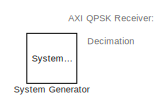
[diagram: root canvas - part 1/4, top center region]
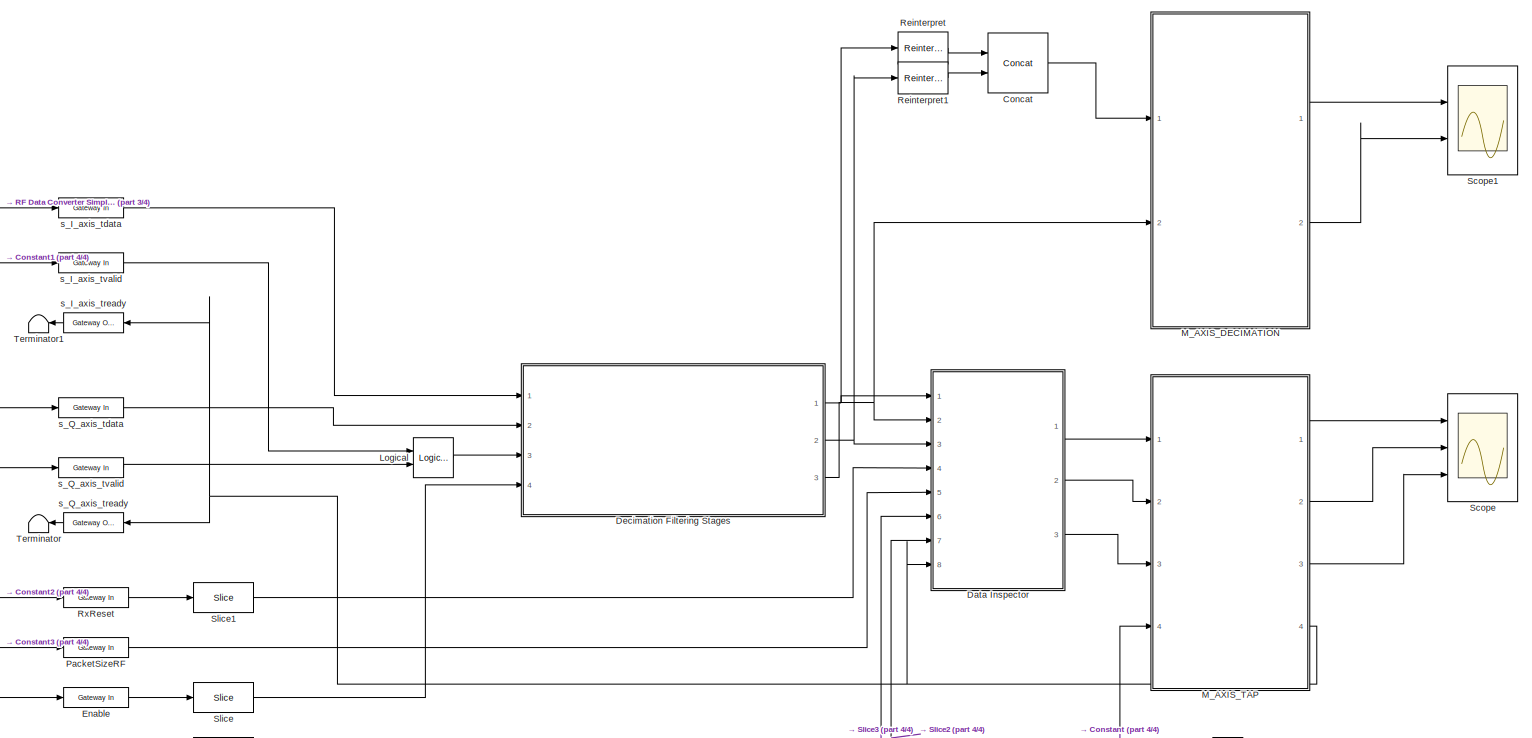
[diagram: root canvas - part 2/4, right side, full height]
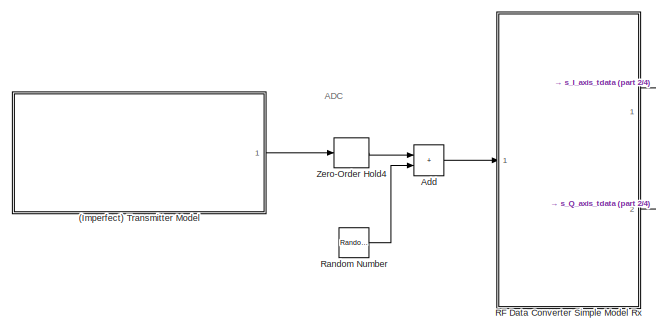
[diagram: root canvas - part 3/4, middle left region]
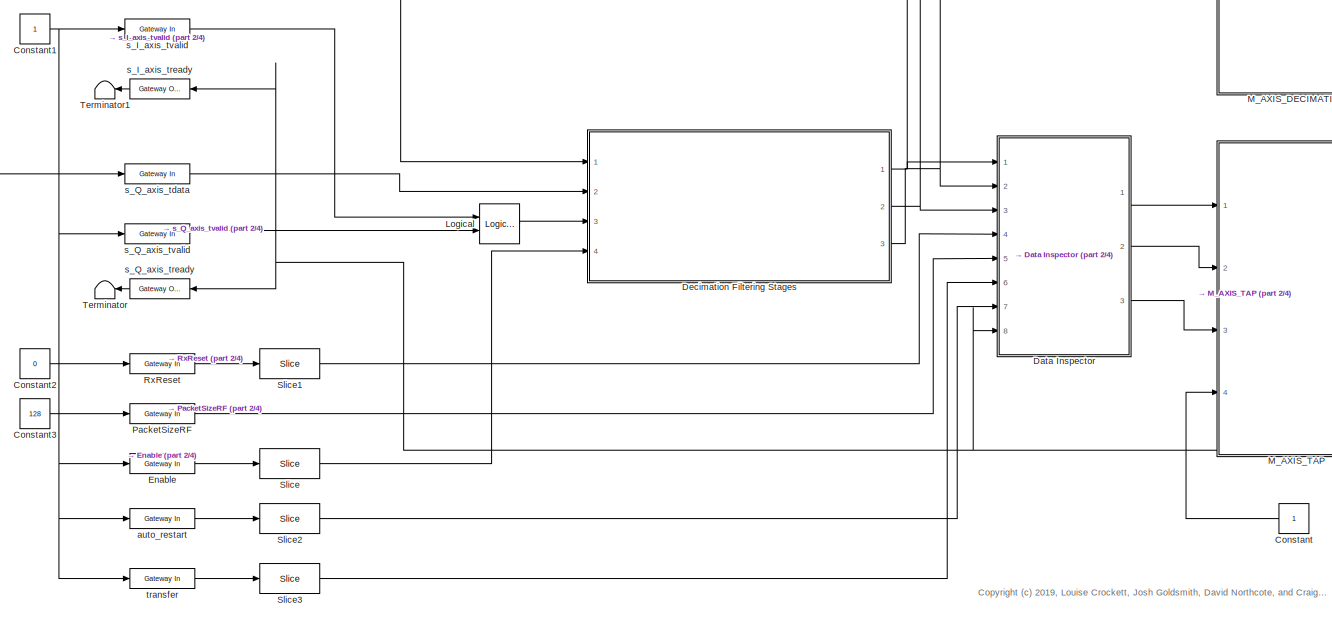
[diagram: root canvas - part 4/4, bottom center region]
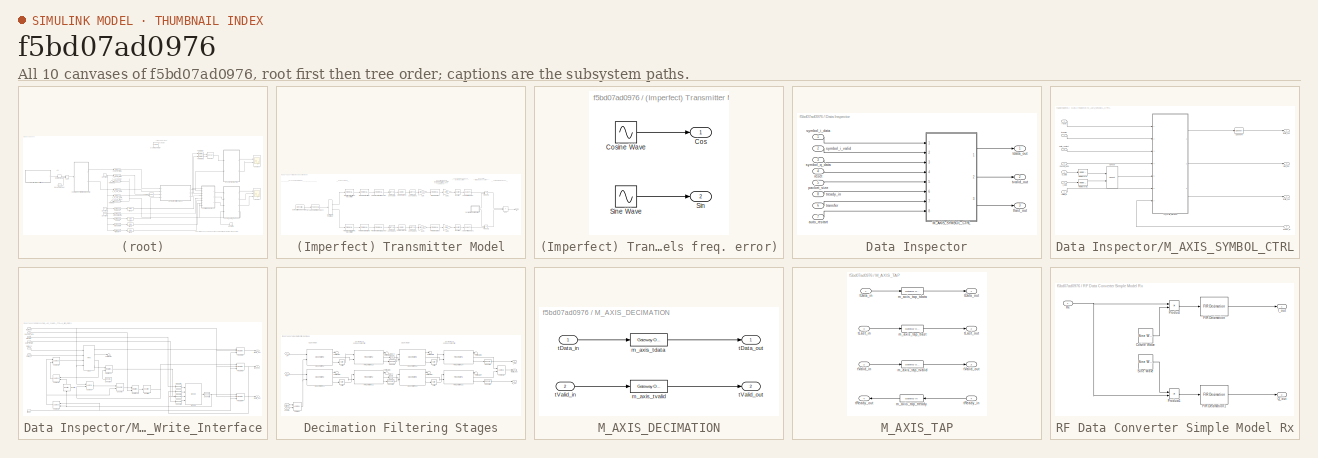
[diagram: thumbnail index - all 10 canvases of the model, root first then tree order]
MODEL slx_f5bd07ad0976
KIND model
CONFIG AbsTol = auto
CONFIG EnableMultiTasking = off
CONFIG FixedStep = auto
CONFIG InitFcn = fs_in=25.6e6;
CONFIG MaxStep = auto
CONFIG MinStep = auto
CONFIG PreLoadFcn = design_filters_rx;      % run script to generate filter designs.\n\nRb = 1000;   % 1kbit / s\n\nRsym = Rb/2;   % 2 bits per symbol\n\nRsymbol = Rb/2;\n\nOSR = 32;\n\nf_error = 120;\n\nfc = 100e3;\n\nfs_in=25.6e6;
CONFIG RelTol = 1e-3
CONFIG SampleTimeConstraint = Unconstrained
CONFIG Solver = VariableStepAuto
CONFIG SolverName = VariableStepAuto
CONFIG StartTime = 0.0
CONFIG StopTime = 10.0
BLOCK [Reference]  System Generator  REF=xbsIndex_r4/ System Generator
  AttributesFormatString = System\nGenerator
  Ports = []
  SourceBlock = xbsIndex_r4/ System Generator
  SourceType = Xilinx System Generator Block
  Tag = genX
  UserDataPersistent = on
BLOCK [SubSystem] (Imperfect) Transmitter Model
  Ports = [0, 1]
  RequestExecContextInheritance = off
BLOCK [Reference] (Imperfect) Transmitter Model/Analog Filter Design  REF=dsparch4/Analog
Filter Design
  Ports = [1, 1]
  SourceBlock = dsparch4/Analog\nFilter Design
  SourceProductBaseCode = DS
  SourceType = Analog Filter Design
BLOCK [Reference] (Imperfect) Transmitter Model/Analog Filter Design1  REF=dsparch4/Analog
Filter Design
  Ports = [1, 1]
  SourceBlock = dsparch4/Analog\nFilter Design
  SourceProductBaseCode = DS
  SourceType = Analog Filter Design
BLOCK [Reference] (Imperfect) Transmitter Model/Bernoulli Binary Generator  REF=commrandsrc2/Bernoulli Binary
Generator
  Ports = [0, 1]
  SourceBlock = commrandsrc2/Bernoulli Binary\nGenerator
  SourceProductBaseCode = CM
  SourceType = Bernoulli Binary Generator
BLOCK [Reference] (Imperfect) Transmitter Model/CIC Interpolation (I)  REF=dspmlti4/CIC
Interpolation
  Ports = [1, 1]
  SourceBlock = dspmlti4/CIC\nInterpolation
  SourceProductBaseCode = DS
  SourceType = CIC Interpolation
  UserDataPersistent = on
BLOCK [Reference] (Imperfect) Transmitter Model/CIC Interpolation (Q)  REF=dspmlti4/CIC
Interpolation
  Ports = [1, 1]
  SourceBlock = dspmlti4/CIC\nInterpolation
  SourceProductBaseCode = DS
  SourceType = CIC Interpolation
  UserDataPersistent = on
BLOCK [ComplexToRealImag] (Imperfect) Transmitter Model/Complex to Real-Imag
  Ports = [1, 2]
BLOCK [DataTypeConversion] (Imperfect) Transmitter Model/Data Type Conversion
  OutDataTypeStr = fixdt(1,16,14)
  RndMeth = Floor
  SaturateOnIntegerOverflow = off
BLOCK [DataTypeConversion] (Imperfect) Transmitter Model/Data Type Conversion1
  OutDataTypeStr = fixdt(1,16,14)
  RndMeth = Floor
  SaturateOnIntegerOverflow = off
BLOCK [DataTypeConversion] (Imperfect) Transmitter Model/Data Type Conversion2
  OutDataTypeStr = double
  RndMeth = Floor
  SaturateOnIntegerOverflow = off
BLOCK [DataTypeConversion] (Imperfect) Transmitter Model/Data Type Conversion3
  OutDataTypeStr = double
  RndMeth = Floor
  SaturateOnIntegerOverflow = off
BLOCK [Reference] (Imperfect) Transmitter Model/FIR Interpolation  REF=dspmlti4/FIR
Interpolation
  Ports = [1, 1]
  SourceBlock = dspmlti4/FIR\nInterpolation
  SourceProductBaseCode = DS
  SourceType = FIR Interpolation
  UserDataPersistent = on
BLOCK [Reference] (Imperfect) Transmitter Model/FIR Interpolation (I) (CIC Comp)  REF=dspmlti4/FIR
Interpolation
  Ports = [1, 1]
  SourceBlock = dspmlti4/FIR\nInterpolation
  SourceProductBaseCode = DS
  SourceType = FIR Interpolation
  UserDataPersistent = on
BLOCK [Reference] (Imperfect) Transmitter Model/FIR Interpolation (I) (HB)  REF=dspmlti4/FIR
Interpolation
  Ports = [1, 1]
  SourceBlock = dspmlti4/FIR\nInterpolation
  SourceProductBaseCode = DS
  SourceType = FIR Interpolation
  UserDataPersistent = on
BLOCK [Reference] (Imperfect) Transmitter Model/FIR Interpolation (I) (RRC Transmit Filter)  REF=dspmlti4/FIR
Interpolation
  Ports = [1, 1]
  SourceBlock = dspmlti4/FIR\nInterpolation
  SourceProductBaseCode = DS
  SourceType = FIR Interpolation
  UserDataPersistent = on
BLOCK [Reference] (Imperfect) Transmitter Model/FIR Interpolation (Q) (CIC Comp)  REF=dspmlti4/FIR
Interpolation
  Ports = [1, 1]
  SourceBlock = dspmlti4/FIR\nInterpolation
  SourceProductBaseCode = DS
  SourceType = FIR Interpolation
  UserDataPersistent = on
BLOCK [Reference] (Imperfect) Transmitter Model/FIR Interpolation (Q) (HB)  REF=dspmlti4/FIR
Interpolation
  Ports = [1, 1]
  SourceBlock = dspmlti4/FIR\nInterpolation
  SourceProductBaseCode = DS
  SourceType = FIR Interpolation
  UserDataPersistent = on
BLOCK [Reference] (Imperfect) Transmitter Model/FIR Interpolation (Q) (RRC Transmit Filter)  REF=dspmlti4/FIR
Interpolation
  Ports = [1, 1]
  SourceBlock = dspmlti4/FIR\nInterpolation
  SourceProductBaseCode = DS
  SourceType = FIR Interpolation
  UserDataPersistent = on
BLOCK [Reference] (Imperfect) Transmitter Model/FIR Interpolation1  REF=dspmlti4/FIR
Interpolation
  Ports = [1, 1]
  SourceBlock = dspmlti4/FIR\nInterpolation
  SourceProductBaseCode = DS
  SourceType = FIR Interpolation
  UserDataPersistent = on
BLOCK [Gain] (Imperfect) Transmitter Model/Gain
  Gain = 1/(R_CIC^5)
BLOCK [Gain] (Imperfect) Transmitter Model/Gain1
  Gain = 1/(R_CIC^5)
BLOCK [Gain] (Imperfect) Transmitter Model/Gain2
  Gain = 2*2*8
BLOCK [Gain] (Imperfect) Transmitter Model/Gain3
  Gain = 2*2*8
BLOCK [Outport] (Imperfect) Transmitter Model/IF
  VectorParamsAs1DForOutWhenUnconnected = off
BLOCK [SubSystem] (Imperfect) Transmitter Model/Oscillator (models freq. error)
  Ports = [0, 2]
  RequestExecContextInheritance = off
BLOCK [Outport] (Imperfect) Transmitter Model/Oscillator (models freq. error)/Cos
  VectorParamsAs1DForOutWhenUnconnected = off
BLOCK [Sin] (Imperfect) Transmitter Model/Oscillator (models freq. error)/Cosine Wave
  Frequency = 2*pi*(fc-F_Offset)
  Phase = pi/2
  Ports = [0, 1]
  SampleTime = 0
BLOCK [Outport] (Imperfect) Transmitter Model/Oscillator (models freq. error)/Sin
  Port = 2
  VectorParamsAs1DForOutWhenUnconnected = off
BLOCK [Sin] (Imperfect) Transmitter Model/Oscillator (models freq. error)/Sine Wave
  Frequency = 2*pi*(fc-F_Offset)
  Ports = [0, 1]
  SampleTime = 0
BLOCK [Product] (Imperfect) Transmitter Model/Product1
  Ports = [2, 1]
BLOCK [Product] (Imperfect) Transmitter Model/Product2
  Ports = [2, 1]
BLOCK [Reference] (Imperfect) Transmitter Model/QPSK Modulator Baseband  REF=commdigbbndpm3/QPSK
Modulator
Baseband
  Ports = [1, 1]
  SourceBlock = commdigbbndpm3/QPSK\nModulator\nBaseband
  SourceProductBaseCode = CM
  SourceType = QPSK Modulator Baseband
BLOCK [Unbuffer] (Imperfect) Transmitter Model/Unbuffer
  Ports = [1, 1]
BLOCK [Unbuffer] (Imperfect) Transmitter Model/Unbuffer1
  Ports = [1, 1]
BLOCK [Sum] (Imperfect) Transmitter Model/add
  IconShape = rectangular
  Ports = [2, 1]
BLOCK [Sum] Add
  IconShape = rectangular
  Ports = [2, 1]
BLOCK [Reference] Concat  REF=xbsIndex_r4/Concat
  Ports = [2, 1]
  SourceBlock = xbsIndex_r4/Concat
  SourceType = Xilinx Bus Concatenator Block
BLOCK [Constant] Constant
  OutDataTypeStr = boolean
  SampleTime = 1/fs_in
BLOCK [Constant] Constant1
  OutDataTypeStr = boolean
  SampleTime = -1
BLOCK [Constant] Constant2
  OutDataTypeStr = boolean
  SampleTime = -1
  Value = 0
BLOCK [Constant] Constant3
  OutDataTypeStr = uint32
  SampleTime = -1
  Value = 128
BLOCK [SubSystem] Data Inspector
  Ports = [8, 3]
  RequestExecContextInheritance = off
BLOCK [SubSystem] Data Inspector/M_AXIS_SYMBOL_CTRL
  Ports = [8, 3]
  RequestExecContextInheritance = off
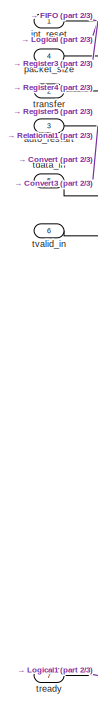
[diagram: Data Inspector/M_AXIS_SYMBOL_CTRL/AXI_Write_Interface - part 1/3, left side, full height]
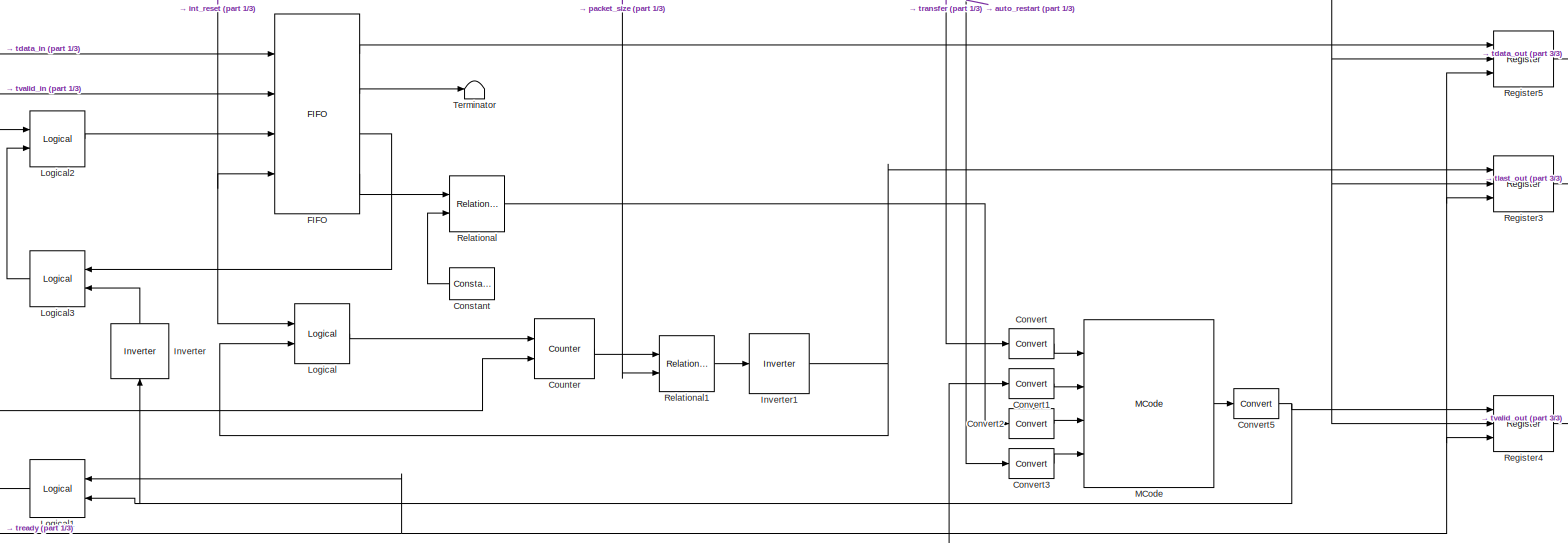
[diagram: Data Inspector/M_AXIS_SYMBOL_CTRL/AXI_Write_Interface - part 2/3, most of the canvas]
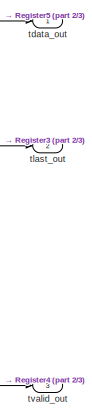
[diagram: Data Inspector/M_AXIS_SYMBOL_CTRL/AXI_Write_Interface - part 3/3, middle right region]
BLOCK [SubSystem] Data Inspector/M_AXIS_SYMBOL_CTRL/AXI_Write_Interface
  Ports = [7, 3]
  RequestExecContextInheritance = off
BLOCK [Reference] Data Inspector/M_AXIS_SYMBOL_CTRL/AXI_Write_Interface/Constant  REF=xbsIndex_r4/Constant
  Ports = [0, 1]
  SourceBlock = xbsIndex_r4/Constant
  SourceType = Xilinx Constant Block Block
BLOCK [Reference] Data Inspector/M_AXIS_SYMBOL_CTRL/AXI_Write_Interface/Convert  REF=xbsIndex_r4/Convert
  Ports = [1, 1]
  SourceBlock = xbsIndex_r4/Convert
  SourceType = Xilinx Type Converter Block
BLOCK [Reference] Data Inspector/M_AXIS_SYMBOL_CTRL/AXI_Write_Interface/Convert1  REF=xbsIndex_r4/Convert
  Ports = [1, 1]
  SourceBlock = xbsIndex_r4/Convert
  SourceType = Xilinx Type Converter Block
BLOCK [Reference] Data Inspector/M_AXIS_SYMBOL_CTRL/AXI_Write_Interface/Convert2  REF=xbsIndex_r4/Convert
  Ports = [1, 1]
  SourceBlock = xbsIndex_r4/Convert
  SourceType = Xilinx Type Converter Block
BLOCK [Reference] Data Inspector/M_AXIS_SYMBOL_CTRL/AXI_Write_Interface/Convert3  REF=xbsIndex_r4/Convert
  Ports = [1, 1]
  SourceBlock = xbsIndex_r4/Convert
  SourceType = Xilinx Type Converter Block
BLOCK [Reference] Data Inspector/M_AXIS_SYMBOL_CTRL/AXI_Write_Interface/Convert5  REF=xbsIndex_r4/Convert
  Ports = [1, 1]
  SourceBlock = xbsIndex_r4/Convert
  SourceType = Xilinx Type Converter Block
BLOCK [Reference] Data Inspector/M_AXIS_SYMBOL_CTRL/AXI_Write_Interface/Counter  REF=xbsIndex_r4/Counter
  Ports = [2, 1]
  SourceBlock = xbsIndex_r4/Counter
  SourceType = Xilinx Counter Block
BLOCK [Reference] Data Inspector/M_AXIS_SYMBOL_CTRL/AXI_Write_Interface/FIFO  REF=xbsIndex_r4/FIFO
  Ports = [4, 4]
  SourceBlock = xbsIndex_r4/FIFO
  SourceType = Xilinx FIFO Block Block
BLOCK [Reference] Data Inspector/M_AXIS_SYMBOL_CTRL/AXI_Write_Interface/Inverter  REF=xbsIndex_r4/Inverter
  NameLocation = left
  Ports = [1, 1]
  SourceBlock = xbsIndex_r4/Inverter
  SourceType = Xilinx Inverter Block
BLOCK [Reference] Data Inspector/M_AXIS_SYMBOL_CTRL/AXI_Write_Interface/Inverter1  REF=xbsIndex_r4/Inverter
  Ports = [1, 1]
  SourceBlock = xbsIndex_r4/Inverter
  SourceType = Xilinx Inverter Block
BLOCK [Reference] Data Inspector/M_AXIS_SYMBOL_CTRL/AXI_Write_Interface/Logical  REF=xbsIndex_r4/Logical
  Ports = [2, 1]
  SourceBlock = xbsIndex_r4/Logical
  SourceType = Xilinx Logical Block Block
BLOCK [Reference] Data Inspector/M_AXIS_SYMBOL_CTRL/AXI_Write_Interface/Logical1  REF=xbsIndex_r4/Logical
  NameLocation = top
  Ports = [2, 1]
  SourceBlock = xbsIndex_r4/Logical
  SourceType = Xilinx Logical Block Block
BLOCK [Reference] Data Inspector/M_AXIS_SYMBOL_CTRL/AXI_Write_Interface/Logical2  REF=xbsIndex_r4/Logical
  Ports = [2, 1]
  SourceBlock = xbsIndex_r4/Logical
  SourceType = Xilinx Logical Block Block
BLOCK [Reference] Data Inspector/M_AXIS_SYMBOL_CTRL/AXI_Write_Interface/Logical3  REF=xbsIndex_r4/Logical
  NameLocation = top
  Ports = [2, 1]
  SourceBlock = xbsIndex_r4/Logical
  SourceType = Xilinx Logical Block Block
BLOCK [Reference] Data Inspector/M_AXIS_SYMBOL_CTRL/AXI_Write_Interface/MCode  REF=xbsIndex_r4/MCode
  Ports = [4, 1]
  SourceBlock = xbsIndex_r4/MCode
  SourceType = Xilinx MCode Block Block
BLOCK [Reference] Data Inspector/M_AXIS_SYMBOL_CTRL/AXI_Write_Interface/Register3  REF=xbsIndex_r4/Register
  Ports = [3, 1]
  SourceBlock = xbsIndex_r4/Register
  SourceType = Xilinx Register Block
BLOCK [Reference] Data Inspector/M_AXIS_SYMBOL_CTRL/AXI_Write_Interface/Register4  REF=xbsIndex_r4/Register
  Ports = [3, 1]
  SourceBlock = xbsIndex_r4/Register
  SourceType = Xilinx Register Block
BLOCK [Reference] Data Inspector/M_AXIS_SYMBOL_CTRL/AXI_Write_Interface/Register5  REF=xbsIndex_r4/Register
  Ports = [3, 1]
  SourceBlock = xbsIndex_r4/Register
  SourceType = Xilinx Register Block
BLOCK [Reference] Data Inspector/M_AXIS_SYMBOL_CTRL/AXI_Write_Interface/Relational  REF=xbsIndex_r4/Relational
  Ports = [2, 1]
  SourceBlock = xbsIndex_r4/Relational
  SourceType = Xilinx Arithmetic Relational Operator Block
BLOCK [Reference] Data Inspector/M_AXIS_SYMBOL_CTRL/AXI_Write_Interface/Relational1  REF=xbsIndex_r4/Relational
  Ports = [2, 1]
  SourceBlock = xbsIndex_r4/Relational
  SourceType = Xilinx Arithmetic Relational Operator Block
BLOCK [Terminator] Data Inspector/M_AXIS_SYMBOL_CTRL/AXI_Write_Interface/Terminator
BLOCK [Inport] Data Inspector/M_AXIS_SYMBOL_CTRL/AXI_Write_Interface/auto_restart
  Port = 3
BLOCK [Inport] Data Inspector/M_AXIS_SYMBOL_CTRL/AXI_Write_Interface/int_reset
BLOCK [Inport] Data Inspector/M_AXIS_SYMBOL_CTRL/AXI_Write_Interface/packet_size
  Port = 4
BLOCK [Inport] Data Inspector/M_AXIS_SYMBOL_CTRL/AXI_Write_Interface/tdata_in
  Port = 5
BLOCK [Outport] Data Inspector/M_AXIS_SYMBOL_CTRL/AXI_Write_Interface/tdata_out
  VectorParamsAs1DForOutWhenUnconnected = off
BLOCK [Outport] Data Inspector/M_AXIS_SYMBOL_CTRL/AXI_Write_Interface/tlast_out
  Port = 2
  VectorParamsAs1DForOutWhenUnconnected = off
BLOCK [Inport] Data Inspector/M_AXIS_SYMBOL_CTRL/AXI_Write_Interface/transfer
  Port = 2
BLOCK [Inport] Data Inspector/M_AXIS_SYMBOL_CTRL/AXI_Write_Interface/tready
  Port = 7
BLOCK [Inport] Data Inspector/M_AXIS_SYMBOL_CTRL/AXI_Write_Interface/tvalid_in
  Port = 6
BLOCK [Outport] Data Inspector/M_AXIS_SYMBOL_CTRL/AXI_Write_Interface/tvalid_out
  Port = 3
  VectorParamsAs1DForOutWhenUnconnected = off
BLOCK [Reference] Data Inspector/M_AXIS_SYMBOL_CTRL/Concat  REF=xbsIndex_r4/Concat
  Ports = [2, 1]
  SourceBlock = xbsIndex_r4/Concat
  SourceType = Xilinx Bus Concatenator Block
BLOCK [Reference] Data Inspector/M_AXIS_SYMBOL_CTRL/Convert4  REF=xbsIndex_r4/Convert
  Ports = [1, 1]
  SourceBlock = xbsIndex_r4/Convert
  SourceType = Xilinx Type Converter Block
BLOCK [Reference] Data Inspector/M_AXIS_SYMBOL_CTRL/Reinterpret  REF=xbsIndex_r4/Reinterpret
  Ports = [1, 1]
  SourceBlock = xbsIndex_r4/Reinterpret
  SourceType = Xilinx Type Reinterpreter Block
BLOCK [Reference] Data Inspector/M_AXIS_SYMBOL_CTRL/Reinterpret1  REF=xbsIndex_r4/Reinterpret
  Ports = [1, 1]
  SourceBlock = xbsIndex_r4/Reinterpret
  SourceType = Xilinx Type Reinterpreter Block
BLOCK [Inport] Data Inspector/M_AXIS_SYMBOL_CTRL/auto_restart
  Port = 8
BLOCK [Inport] Data Inspector/M_AXIS_SYMBOL_CTRL/i_data
BLOCK [Inport] Data Inspector/M_AXIS_SYMBOL_CTRL/packet_size
  Port = 5
BLOCK [Inport] Data Inspector/M_AXIS_SYMBOL_CTRL/q_data
  Port = 3
BLOCK [Inport] Data Inspector/M_AXIS_SYMBOL_CTRL/reset
  Port = 4
BLOCK [Outport] Data Inspector/M_AXIS_SYMBOL_CTRL/tdata_out
  VectorParamsAs1DForOutWhenUnconnected = off
BLOCK [Outport] Data Inspector/M_AXIS_SYMBOL_CTRL/tlast_out
  Port = 3
  VectorParamsAs1DForOutWhenUnconnected = off
BLOCK [Inport] Data Inspector/M_AXIS_SYMBOL_CTRL/transfer
  Port = 7
BLOCK [Inport] Data Inspector/M_AXIS_SYMBOL_CTRL/tready_in
  Port = 6
BLOCK [Inport] Data Inspector/M_AXIS_SYMBOL_CTRL/tvalid_in
  Port = 2
BLOCK [Outport] Data Inspector/M_AXIS_SYMBOL_CTRL/tvalid_out
  Port = 2
  VectorParamsAs1DForOutWhenUnconnected = off
BLOCK [Inport] Data Inspector/auto_restart
  Port = 7
BLOCK [Inport] Data Inspector/packet_size
  Port = 5
BLOCK [Inport] Data Inspector/reset
  Port = 4
BLOCK [Inport] Data Inspector/symbol_i_data
BLOCK [Inport] Data Inspector/symbol_i_valid
  Port = 2
BLOCK [Inport] Data Inspector/symbol_q_data
  Port = 3
BLOCK [Outport] Data Inspector/tdata_out
  VectorParamsAs1DForOutWhenUnconnected = off
BLOCK [Outport] Data Inspector/tlast_out
  Port = 3
  VectorParamsAs1DForOutWhenUnconnected = off
BLOCK [Inport] Data Inspector/transfer
  Port = 6
BLOCK [Inport] Data Inspector/tready_in
  Port = 8
BLOCK [Outport] Data Inspector/tvalid_out
  Port = 2
  VectorParamsAs1DForOutWhenUnconnected = off
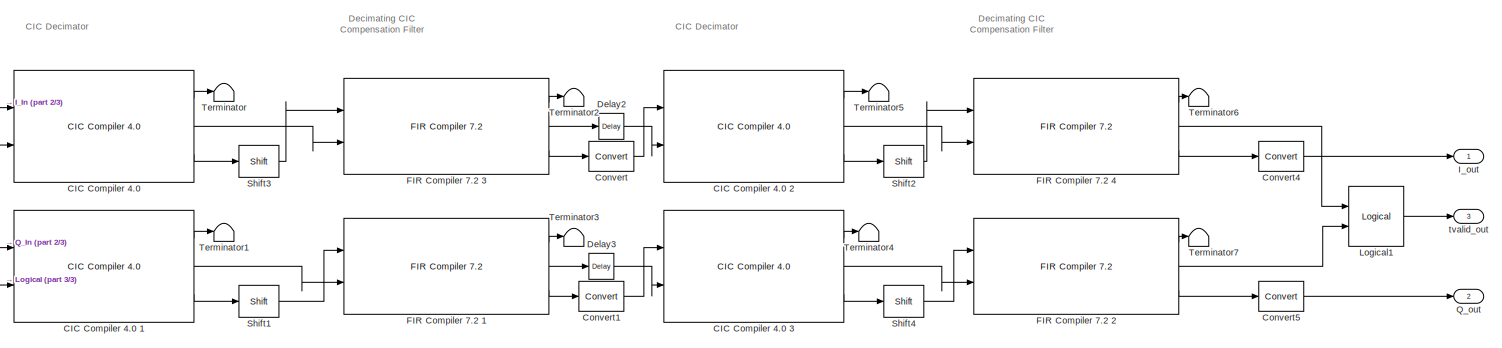
[diagram: Decimation Filtering Stages - part 1/3, full width, middle band]
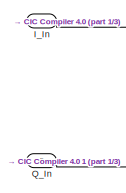
[diagram: Decimation Filtering Stages - part 2/3, middle left region]
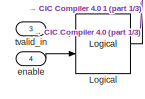
[diagram: Decimation Filtering Stages - part 3/3, bottom left region]
BLOCK [SubSystem] Decimation Filtering Stages
  Ports = [4, 3]
  RequestExecContextInheritance = off
BLOCK [Reference] Decimation Filtering Stages/CIC Compiler 4.0   REF=xbsIndex_r4/CIC Compiler 4.0 
  Ports = [2, 3]
  SourceBlock = xbsIndex_r4/CIC Compiler 4.0
  SourceType = Xilinx CIC Compiler 4.0 Block
BLOCK [Reference] Decimation Filtering Stages/CIC Compiler 4.0 1  REF=xbsIndex_r4/CIC Compiler 4.0 
  Ports = [2, 3]
  SourceBlock = xbsIndex_r4/CIC Compiler 4.0
  SourceType = Xilinx CIC Compiler 4.0 Block
BLOCK [Reference] Decimation Filtering Stages/CIC Compiler 4.0 2  REF=xbsIndex_r4/CIC Compiler 4.0 
  Ports = [2, 3]
  SourceBlock = xbsIndex_r4/CIC Compiler 4.0
  SourceType = Xilinx CIC Compiler 4.0 Block
BLOCK [Reference] Decimation Filtering Stages/CIC Compiler 4.0 3  REF=xbsIndex_r4/CIC Compiler 4.0 
  Ports = [2, 3]
  SourceBlock = xbsIndex_r4/CIC Compiler 4.0
  SourceType = Xilinx CIC Compiler 4.0 Block
BLOCK [Reference] Decimation Filtering Stages/Convert  REF=xbsIndex_r4/Convert
  Ports = [1, 1]
  SourceBlock = xbsIndex_r4/Convert
  SourceType = Xilinx Type Converter Block
BLOCK [Reference] Decimation Filtering Stages/Convert1  REF=xbsIndex_r4/Convert
  Ports = [1, 1]
  SourceBlock = xbsIndex_r4/Convert
  SourceType = Xilinx Type Converter Block
BLOCK [Reference] Decimation Filtering Stages/Convert4  REF=xbsIndex_r4/Convert
  Ports = [1, 1]
  SourceBlock = xbsIndex_r4/Convert
  SourceType = Xilinx Type Converter Block
BLOCK [Reference] Decimation Filtering Stages/Convert5  REF=xbsIndex_r4/Convert
  Ports = [1, 1]
  SourceBlock = xbsIndex_r4/Convert
  SourceType = Xilinx Type Converter Block
BLOCK [Reference] Decimation Filtering Stages/Delay2  REF=xbsIndex_r4/Delay
  Ports = [1, 1]
  SourceBlock = xbsIndex_r4/Delay
  SourceType = Xilinx Delay Block
BLOCK [Reference] Decimation Filtering Stages/Delay3  REF=xbsIndex_r4/Delay
  Ports = [1, 1]
  SourceBlock = xbsIndex_r4/Delay
  SourceType = Xilinx Delay Block
BLOCK [Reference] Decimation Filtering Stages/FIR Compiler 7.2 1  REF=xbsIndex_r4/FIR Compiler 7.2 
  Ports = [2, 3]
  SourceBlock = xbsIndex_r4/FIR Compiler 7.2
  SourceType = Xilinx FIR Compiler 7.2 Block
BLOCK [Reference] Decimation Filtering Stages/FIR Compiler 7.2 2  REF=xbsIndex_r4/FIR Compiler 7.2 
  Ports = [2, 3]
  SourceBlock = xbsIndex_r4/FIR Compiler 7.2
  SourceType = Xilinx FIR Compiler 7.2 Block
BLOCK [Reference] Decimation Filtering Stages/FIR Compiler 7.2 3  REF=xbsIndex_r4/FIR Compiler 7.2 
  Ports = [2, 3]
  SourceBlock = xbsIndex_r4/FIR Compiler 7.2
  SourceType = Xilinx FIR Compiler 7.2 Block
BLOCK [Reference] Decimation Filtering Stages/FIR Compiler 7.2 4  REF=xbsIndex_r4/FIR Compiler 7.2 
  Ports = [2, 3]
  SourceBlock = xbsIndex_r4/FIR Compiler 7.2
  SourceType = Xilinx FIR Compiler 7.2 Block
BLOCK [Inport] Decimation Filtering Stages/I_In
BLOCK [Outport] Decimation Filtering Stages/I_out
  VectorParamsAs1DForOutWhenUnconnected = off
BLOCK [Reference] Decimation Filtering Stages/Logical  REF=xbsIndex_r4/Logical
  Ports = [2, 1]
  SourceBlock = xbsIndex_r4/Logical
  SourceType = Xilinx Logical Block Block
BLOCK [Reference] Decimation Filtering Stages/Logical1  REF=xbsIndex_r4/Logical
  Ports = [2, 1]
  SourceBlock = xbsIndex_r4/Logical
  SourceType = Xilinx Logical Block Block
BLOCK [Inport] Decimation Filtering Stages/Q_In
  Port = 2
BLOCK [Outport] Decimation Filtering Stages/Q_out
  Port = 2
  VectorParamsAs1DForOutWhenUnconnected = off
BLOCK [Reference] Decimation Filtering Stages/Shift1  REF=xbsIndex_r4/Shift
  Ports = [1, 1]
  SourceBlock = xbsIndex_r4/Shift
  SourceType = Xilinx Binary Shift Operator Block
BLOCK [Reference] Decimation Filtering Stages/Shift2  REF=xbsIndex_r4/Shift
  Ports = [1, 1]
  SourceBlock = xbsIndex_r4/Shift
  SourceType = Xilinx Binary Shift Operator Block
BLOCK [Reference] Decimation Filtering Stages/Shift3  REF=xbsIndex_r4/Shift
  Ports = [1, 1]
  SourceBlock = xbsIndex_r4/Shift
  SourceType = Xilinx Binary Shift Operator Block
BLOCK [Reference] Decimation Filtering Stages/Shift4  REF=xbsIndex_r4/Shift
  Ports = [1, 1]
  SourceBlock = xbsIndex_r4/Shift
  SourceType = Xilinx Binary Shift Operator Block
BLOCK [Terminator] Decimation Filtering Stages/Terminator
BLOCK [Terminator] Decimation Filtering Stages/Terminator1
BLOCK [Terminator] Decimation Filtering Stages/Terminator2
BLOCK [Terminator] Decimation Filtering Stages/Terminator3
BLOCK [Terminator] Decimation Filtering Stages/Terminator4
BLOCK [Terminator] Decimation Filtering Stages/Terminator5
BLOCK [Terminator] Decimation Filtering Stages/Terminator6
BLOCK [Terminator] Decimation Filtering Stages/Terminator7
BLOCK [Inport] Decimation Filtering Stages/enable
  Port = 4
BLOCK [Inport] Decimation Filtering Stages/tvalid_in
  Port = 3
BLOCK [Outport] Decimation Filtering Stages/tvalid_out
  Port = 3
  VectorParamsAs1DForOutWhenUnconnected = off
BLOCK [Reference] Enable  REF=xbsIndex_r4/Gateway In
  Ports = [1, 1]
  SourceBlock = xbsIndex_r4/Gateway In
  SourceType = Xilinx Gateway In Block
BLOCK [Reference] Logical  REF=xbsIndex_r4/Logical
  Ports = [2, 1]
  SourceBlock = xbsIndex_r4/Logical
  SourceType = Xilinx Logical Block Block
BLOCK [SubSystem] M_AXIS_DECIMATION
  Ports = [2, 2]
  RequestExecContextInheritance = off
BLOCK [Reference] M_AXIS_DECIMATION/m_axis_tdata  REF=xbsIndex_r4/Gateway Out
  Ports = [1, 1]
  SourceBlock = xbsIndex_r4/Gateway Out
  SourceType = Xilinx Gateway Out Block
BLOCK [Reference] M_AXIS_DECIMATION/m_axis_tvalid  REF=xbsIndex_r4/Gateway Out
  Ports = [1, 1]
  SourceBlock = xbsIndex_r4/Gateway Out
  SourceType = Xilinx Gateway Out Block
BLOCK [Inport] M_AXIS_DECIMATION/tData_in
BLOCK [Outport] M_AXIS_DECIMATION/tData_out
  VectorParamsAs1DForOutWhenUnconnected = off
BLOCK [Inport] M_AXIS_DECIMATION/tValid_in
  Port = 2
BLOCK [Outport] M_AXIS_DECIMATION/tValid_out
  Port = 2
  VectorParamsAs1DForOutWhenUnconnected = off
BLOCK [SubSystem] M_AXIS_TAP
  Ports = [4, 4]
  RequestExecContextInheritance = off
BLOCK [Reference] M_AXIS_TAP/m_axis_tap_tdata  REF=xbsIndex_r4/Gateway Out
  Ports = [1, 1]
  SourceBlock = xbsIndex_r4/Gateway Out
  SourceType = Xilinx Gateway Out Block
BLOCK [Reference] M_AXIS_TAP/m_axis_tap_tlast  REF=xbsIndex_r4/Gateway Out
  Ports = [1, 1]
  SourceBlock = xbsIndex_r4/Gateway Out
  SourceType = Xilinx Gateway Out Block
BLOCK [Reference] M_AXIS_TAP/m_axis_tap_tready  REF=xbsIndex_r4/Gateway In
  Ports = [1, 1]
  SourceBlock = xbsIndex_r4/Gateway In
  SourceType = Xilinx Gateway In Block
BLOCK [Reference] M_AXIS_TAP/m_axis_tap_tvalid  REF=xbsIndex_r4/Gateway Out
  Ports = [1, 1]
  SourceBlock = xbsIndex_r4/Gateway Out
  SourceType = Xilinx Gateway Out Block
BLOCK [Inport] M_AXIS_TAP/tData_in
BLOCK [Outport] M_AXIS_TAP/tData_out
  VectorParamsAs1DForOutWhenUnconnected = off
BLOCK [Inport] M_AXIS_TAP/tLast_in
  Port = 3
BLOCK [Outport] M_AXIS_TAP/tLast_out
  Port = 2
  VectorParamsAs1DForOutWhenUnconnected = off
BLOCK [Inport] M_AXIS_TAP/tReady_in
  Port = 4
BLOCK [Outport] M_AXIS_TAP/tReady_out
  Port = 4
  VectorParamsAs1DForOutWhenUnconnected = off
BLOCK [Inport] M_AXIS_TAP/tValid_in
  Port = 2
BLOCK [Outport] M_AXIS_TAP/tValid_out
  Port = 3
  VectorParamsAs1DForOutWhenUnconnected = off
BLOCK [Reference] PacketSizeRF  REF=xbsIndex_r4/Gateway In
  Ports = [1, 1]
  SourceBlock = xbsIndex_r4/Gateway In
  SourceType = Xilinx Gateway In Block
BLOCK [SubSystem] RF Data Converter Simple Model Rx
  Ports = [1, 2]
  RequestExecContextInheritance = off
BLOCK [Reference] RF Data Converter Simple Model Rx/Cosine Wave  REF=dspsrcs4/Sine Wave
  NameLocation = top
  Ports = [0, 1]
  SourceBlock = dspsrcs4/Sine Wave
  SourceProductBaseCode = DS
  SourceType = Sine Wave
BLOCK [Reference] RF Data Converter Simple Model Rx/FIR Decimation  REF=dspmlti4/FIR
Decimation
  Ports = [1, 1]
  SourceBlock = dspmlti4/FIR\nDecimation
  SourceProductBaseCode = DS
  SourceType = FIR Decimation
  UserDataPersistent = on
BLOCK [Reference] RF Data Converter Simple Model Rx/FIR Decimation1  REF=dspmlti4/FIR
Decimation
  Ports = [1, 1]
  SourceBlock = dspmlti4/FIR\nDecimation
  SourceProductBaseCode = DS
  SourceType = FIR Decimation
  UserDataPersistent = on
BLOCK [Outport] RF Data Converter Simple Model Rx/I_out
  VectorParamsAs1DForOutWhenUnconnected = off
BLOCK [Product] RF Data Converter Simple Model Rx/Product
  Ports = [2, 1]
BLOCK [Product] RF Data Converter Simple Model Rx/Product1
  Ports = [2, 1]
BLOCK [Outport] RF Data Converter Simple Model Rx/Q_out
  Port = 2
  VectorParamsAs1DForOutWhenUnconnected = off
BLOCK [Inport] RF Data Converter Simple Model Rx/Rx
BLOCK [Reference] RF Data Converter Simple Model Rx/Sine Wave  REF=dspsrcs4/Sine Wave
  NameLocation = top
  Ports = [0, 1]
  SourceBlock = dspsrcs4/Sine Wave
  SourceProductBaseCode = DS
  SourceType = Sine Wave
BLOCK [RandomNumber] Random Number
  SampleTime = 1/(0.5*R_RRC*R_HB*R_CICcomp*R_CIC*8*Rb)
  Variance = 0.05
BLOCK [Reference] Reinterpret  REF=xbsIndex_r4/Reinterpret
  Ports = [1, 1]
  SourceBlock = xbsIndex_r4/Reinterpret
  SourceType = Xilinx Type Reinterpreter Block
BLOCK [Reference] Reinterpret1  REF=xbsIndex_r4/Reinterpret
  Ports = [1, 1]
  SourceBlock = xbsIndex_r4/Reinterpret
  SourceType = Xilinx Type Reinterpreter Block
BLOCK [Reference] RxReset  REF=xbsIndex_r4/Gateway In
  Ports = [1, 1]
  SourceBlock = xbsIndex_r4/Gateway In
  SourceType = Xilinx Gateway In Block
BLOCK [Scope] Scope
  Floating = off
  NumInputPorts = 3
  Ports = [3]
  ScopeSpecificationString = Simulink.scopes.TimeScopeBlockCfg('CurrentConfiguration', extmgr.ConfigurationSet(extmgr.Configuration('Core','General UI',true),extmgr.Configuration('Core','Source UI',true),extmgr.Configuration('Sources','WiredSimulink',true),extmgr.Configuration('Visuals','Time Domain',true,'SerializedDisplays',{struct('MinYLimReal','-1.00000','MaxYLimReal','1.00000','YLabelReal','','MinYLimMag','0.00000','MaxY...<+2793ch>
BLOCK [Scope] Scope1
  Floating = off
  NumInputPorts = 2
  Ports = [2]
  ScopeSpecificationString = Simulink.scopes.TimeScopeBlockCfg('CurrentConfiguration', extmgr.ConfigurationSet(extmgr.Configuration('Core','General UI',true),extmgr.Configuration('Core','Source UI',true),extmgr.Configuration('Sources','WiredSimulink',true,'DataLoggingVariableName','ScopeData1'),extmgr.Configuration('Visuals','Time Domain',true,'SerializedDisplays',{struct('MinYLimReal','-1.00000','MaxYLimReal','1.00000','YLab...<+2446ch>
BLOCK [Reference] Slice  REF=xbsIndex_r4/Slice
  Ports = [1, 1]
  SourceBlock = xbsIndex_r4/Slice
  SourceType = Xilinx Bit Slice Extractor Block
BLOCK [Reference] Slice1  REF=xbsIndex_r4/Slice
  Ports = [1, 1]
  SourceBlock = xbsIndex_r4/Slice
  SourceType = Xilinx Bit Slice Extractor Block
BLOCK [Reference] Slice2  REF=xbsIndex_r4/Slice
  Ports = [1, 1]
  SourceBlock = xbsIndex_r4/Slice
  SourceType = Xilinx Bit Slice Extractor Block
BLOCK [Reference] Slice3  REF=xbsIndex_r4/Slice
  Ports = [1, 1]
  SourceBlock = xbsIndex_r4/Slice
  SourceType = Xilinx Bit Slice Extractor Block
BLOCK [Terminator] Terminator
BLOCK [Terminator] Terminator1
BLOCK [ZeroOrderHold] Zero-Order Hold4
  SampleTime = 1/(0.5*R_RRC*R_HB*R_CICcomp*R_CIC*8*Rb)
BLOCK [Reference] auto_restart  REF=xbsIndex_r4/Gateway In
  Ports = [1, 1]
  SourceBlock = xbsIndex_r4/Gateway In
  SourceType = Xilinx Gateway In Block
BLOCK [Reference] s_I_axis_tdata  REF=xbsIndex_r4/Gateway In
  Ports = [1, 1]
  SourceBlock = xbsIndex_r4/Gateway In
  SourceType = Xilinx Gateway In Block
BLOCK [Reference] s_I_axis_tready  REF=xbsIndex_r4/Gateway Out
  Ports = [1, 1]
  SourceBlock = xbsIndex_r4/Gateway Out
  SourceType = Xilinx Gateway Out Block
BLOCK [Reference] s_I_axis_tvalid  REF=xbsIndex_r4/Gateway In
  Ports = [1, 1]
  SourceBlock = xbsIndex_r4/Gateway In
  SourceType = Xilinx Gateway In Block
BLOCK [Reference] s_Q_axis_tdata  REF=xbsIndex_r4/Gateway In
  Ports = [1, 1]
  SourceBlock = xbsIndex_r4/Gateway In
  SourceType = Xilinx Gateway In Block
BLOCK [Reference] s_Q_axis_tready  REF=xbsIndex_r4/Gateway Out
  Ports = [1, 1]
  SourceBlock = xbsIndex_r4/Gateway Out
  SourceType = Xilinx Gateway Out Block
BLOCK [Reference] s_Q_axis_tvalid  REF=xbsIndex_r4/Gateway In
  Ports = [1, 1]
  SourceBlock = xbsIndex_r4/Gateway In
  SourceType = Xilinx Gateway In Block
BLOCK [Reference] transfer  REF=xbsIndex_r4/Gateway In
  Ports = [1, 1]
  SourceBlock = xbsIndex_r4/Gateway In
  SourceType = Xilinx Gateway In Block
ANNOTATION (root): ADC
ANNOTATION (root): AXI QPSK Receiver: Decimation
ANNOTATION (root): C opyright (c) 2019, Louise Crockett, Josh Goldsmith, David Northcote, and Craig Ramsay
ANNOTATION (Imperfect) Transmitter Model: _____modulation_____ (with_ frequency error )
ANNOTATION (Imperfect) Transmitter Model: _conversion to analogue_ (continuous time)
ANNOTATION (Imperfect) Transmitter Model: __ combine I & Q phases__
ANNOTATION (Imperfect) Transmitter Model: __ pulse shaping__
ANNOTATION (Imperfect) Transmitter Model: _____________ DATA SOURCE MODEL _______________
ANNOTATION (Imperfect) Transmitter Model: consolidated gain due to interpolation scaling (not CIC - dealt with by other gain block)
ANNOTATION Decimation Filtering Stages: Decimating CIC Compensation Filter
ANNOTATION Decimation Filtering Stages: CIC Decimator
LINE (Imperfect) Transmitter Model/Analog Filter Design1:1 -> (Imperfect) Transmitter Model/Product2:2
LINE (Imperfect) Transmitter Model/Analog Filter Design:1 -> (Imperfect) Transmitter Model/Product1:1
LINE (Imperfect) Transmitter Model/Bernoulli Binary Generator:1 -> (Imperfect) Transmitter Model/QPSK Modulator Baseband:1
LINE (Imperfect) Transmitter Model/CIC Interpolation (I):1 -> (Imperfect) Transmitter Model/Data Type Conversion2:1
LINE (Imperfect) Transmitter Model/CIC Interpolation (Q):1 -> (Imperfect) Transmitter Model/Data Type Conversion3:1
LINE (Imperfect) Transmitter Model/Complex to Real-Imag:1 -> (Imperfect) Transmitter Model/FIR Interpolation (I) (RRC Transmit Filter):1
LINE (Imperfect) Transmitter Model/Complex to Real-Imag:2 -> (Imperfect) Transmitter Model/FIR Interpolation (Q) (RRC Transmit Filter):1
LINE (Imperfect) Transmitter Model/Data Type Conversion1:1 -> (Imperfect) Transmitter Model/CIC Interpolation (Q):1
LINE (Imperfect) Transmitter Model/Data Type Conversion2:1 -> (Imperfect) Transmitter Model/Gain:1
LINE (Imperfect) Transmitter Model/Data Type Conversion3:1 -> (Imperfect) Transmitter Model/Gain1:1
LINE (Imperfect) Transmitter Model/Data Type Conversion:1 -> (Imperfect) Transmitter Model/CIC Interpolation (I):1
LINE (Imperfect) Transmitter Model/FIR Interpolation (I) (CIC Comp):1 -> (Imperfect) Transmitter Model/Data Type Conversion:1
LINE (Imperfect) Transmitter Model/FIR Interpolation (I) (HB):1 -> (Imperfect) Transmitter Model/FIR Interpolation (I) (CIC Comp):1
LINE (Imperfect) Transmitter Model/FIR Interpolation (I) (RRC Transmit Filter):1 -> (Imperfect) Transmitter Model/FIR Interpolation (I) (HB):1
LINE (Imperfect) Transmitter Model/FIR Interpolation (Q) (CIC Comp):1 -> (Imperfect) Transmitter Model/Data Type Conversion1:1
LINE (Imperfect) Transmitter Model/FIR Interpolation (Q) (HB):1 -> (Imperfect) Transmitter Model/FIR Interpolation (Q) (CIC Comp):1
LINE (Imperfect) Transmitter Model/FIR Interpolation (Q) (RRC Transmit Filter):1 -> (Imperfect) Transmitter Model/FIR Interpolation (Q) (HB):1
LINE (Imperfect) Transmitter Model/FIR Interpolation1:1 -> (Imperfect) Transmitter Model/Gain3:1
LINE (Imperfect) Transmitter Model/FIR Interpolation:1 -> (Imperfect) Transmitter Model/Gain2:1
LINE (Imperfect) Transmitter Model/Gain1:1 -> (Imperfect) Transmitter Model/FIR Interpolation1:1
LINE (Imperfect) Transmitter Model/Gain2:1 -> (Imperfect) Transmitter Model/Unbuffer:1
LINE (Imperfect) Transmitter Model/Gain3:1 -> (Imperfect) Transmitter Model/Unbuffer1:1
LINE (Imperfect) Transmitter Model/Gain:1 -> (Imperfect) Transmitter Model/FIR Interpolation:1
LINE (Imperfect) Transmitter Model/Oscillator (models freq. error)/Cosine Wave:1 -> (Imperfect) Transmitter Model/Oscillator (models freq. error)/Cos:1
LINE (Imperfect) Transmitter Model/Oscillator (models freq. error)/Sine Wave:1 -> (Imperfect) Transmitter Model/Oscillator (models freq. error)/Sin:1
LINE (Imperfect) Transmitter Model/Oscillator (models freq. error):1 -> (Imperfect) Transmitter Model/Product1:2
LINE (Imperfect) Transmitter Model/Oscillator (models freq. error):2 -> (Imperfect) Transmitter Model/Product2:1
LINE (Imperfect) Transmitter Model/Product1:1 -> (Imperfect) Transmitter Model/add:1
LINE (Imperfect) Transmitter Model/Product2:1 -> (Imperfect) Transmitter Model/add:2
LINE (Imperfect) Transmitter Model/QPSK Modulator Baseband:1 -> (Imperfect) Transmitter Model/Complex to Real-Imag:1
LINE (Imperfect) Transmitter Model/Unbuffer1:1 -> (Imperfect) Transmitter Model/Analog Filter Design1:1
LINE (Imperfect) Transmitter Model/Unbuffer:1 -> (Imperfect) Transmitter Model/Analog Filter Design:1
LINE (Imperfect) Transmitter Model/add:1 -> (Imperfect) Transmitter Model/IF:1
LINE (Imperfect) Transmitter Model:1 -> Zero-Order Hold4:1
LINE Add:1 -> RF Data Converter Simple Model Rx:1
LINE Concat:1 -> M_AXIS_DECIMATION:1
NET Constant1:1 -> Enable:1, auto_restart:1, s_I_axis_tvalid:1, s_Q_axis_tvalid:1, transfer:1
LINE Constant2:1 -> RxReset:1
LINE Constant3:1 -> PacketSizeRF:1
LINE Constant:1 -> M_AXIS_TAP:4
LINE Data Inspector/M_AXIS_SYMBOL_CTRL/AXI_Write_Interface/Constant:1 -> Data Inspector/M_AXIS_SYMBOL_CTRL/AXI_Write_Interface/Relational:2
LINE Data Inspector/M_AXIS_SYMBOL_CTRL/AXI_Write_Interface/Convert1:1 -> Data Inspector/M_AXIS_SYMBOL_CTRL/AXI_Write_Interface/MCode:2
LINE Data Inspector/M_AXIS_SYMBOL_CTRL/AXI_Write_Interface/Convert2:1 -> Data Inspector/M_AXIS_SYMBOL_CTRL/AXI_Write_Interface/MCode:3
LINE Data Inspector/M_AXIS_SYMBOL_CTRL/AXI_Write_Interface/Convert3:1 -> Data Inspector/M_AXIS_SYMBOL_CTRL/AXI_Write_Interface/MCode:4
NET Data Inspector/M_AXIS_SYMBOL_CTRL/AXI_Write_Interface/Convert5:1 -> Data Inspector/M_AXIS_SYMBOL_CTRL/AXI_Write_Interface/Inverter:1, Data Inspector/M_AXIS_SYMBOL_CTRL/AXI_Write_Interface/Logical1:2, Data Inspector/M_AXIS_SYMBOL_CTRL/AXI_Write_Interface/Register4:1
LINE Data Inspector/M_AXIS_SYMBOL_CTRL/AXI_Write_Interface/Convert:1 -> Data Inspector/M_AXIS_SYMBOL_CTRL/AXI_Write_Interface/MCode:1
LINE Data Inspector/M_AXIS_SYMBOL_CTRL/AXI_Write_Interface/Counter:1 -> Data Inspector/M_AXIS_SYMBOL_CTRL/AXI_Write_Interface/Relational1:1
LINE Data Inspector/M_AXIS_SYMBOL_CTRL/AXI_Write_Interface/FIFO:1 -> Data Inspector/M_AXIS_SYMBOL_CTRL/AXI_Write_Interface/Register5:1
LINE Data Inspector/M_AXIS_SYMBOL_CTRL/AXI_Write_Interface/FIFO:2 -> Data Inspector/M_AXIS_SYMBOL_CTRL/AXI_Write_Interface/Terminator:1
LINE Data Inspector/M_AXIS_SYMBOL_CTRL/AXI_Write_Interface/FIFO:3 -> Data Inspector/M_AXIS_SYMBOL_CTRL/AXI_Write_Interface/Logical3:1
LINE Data Inspector/M_AXIS_SYMBOL_CTRL/AXI_Write_Interface/FIFO:4 -> Data Inspector/M_AXIS_SYMBOL_CTRL/AXI_Write_Interface/Relational:1
NET Data Inspector/M_AXIS_SYMBOL_CTRL/AXI_Write_Interface/Inverter1:1 -> Data Inspector/M_AXIS_SYMBOL_CTRL/AXI_Write_Interface/Logical:2, Data Inspector/M_AXIS_SYMBOL_CTRL/AXI_Write_Interface/Register3:1
LINE Data Inspector/M_AXIS_SYMBOL_CTRL/AXI_Write_Interface/Inverter:1 -> Data Inspector/M_AXIS_SYMBOL_CTRL/AXI_Write_Interface/Logical3:2
NET Data Inspector/M_AXIS_SYMBOL_CTRL/AXI_Write_Interface/Logical1:1 -> Data Inspector/M_AXIS_SYMBOL_CTRL/AXI_Write_Interface/Counter:2, Data Inspector/M_AXIS_SYMBOL_CTRL/AXI_Write_Interface/Logical2:1
LINE Data Inspector/M_AXIS_SYMBOL_CTRL/AXI_Write_Interface/Logical2:1 -> Data Inspector/M_AXIS_SYMBOL_CTRL/AXI_Write_Interface/FIFO:3
LINE Data Inspector/M_AXIS_SYMBOL_CTRL/AXI_Write_Interface/Logical3:1 -> Data Inspector/M_AXIS_SYMBOL_CTRL/AXI_Write_Interface/Logical2:2
LINE Data Inspector/M_AXIS_SYMBOL_CTRL/AXI_Write_Interface/Logical:1 -> Data Inspector/M_AXIS_SYMBOL_CTRL/AXI_Write_Interface/Counter:1
LINE Data Inspector/M_AXIS_SYMBOL_CTRL/AXI_Write_Interface/MCode:1 -> Data Inspector/M_AXIS_SYMBOL_CTRL/AXI_Write_Interface/Convert5:1
NET Data Inspector/M_AXIS_SYMBOL_CTRL/AXI_Write_Interface/Register3:1 -> Data Inspector/M_AXIS_SYMBOL_CTRL/AXI_Write_Interface/Convert1:1, Data Inspector/M_AXIS_SYMBOL_CTRL/AXI_Write_Interface/tlast_out:1
LINE Data Inspector/M_AXIS_SYMBOL_CTRL/AXI_Write_Interface/Register4:1 -> Data Inspector/M_AXIS_SYMBOL_CTRL/AXI_Write_Interface/tvalid_out:1
LINE Data Inspector/M_AXIS_SYMBOL_CTRL/AXI_Write_Interface/Register5:1 -> Data Inspector/M_AXIS_SYMBOL_CTRL/AXI_Write_Interface/tdata_out:1
LINE Data Inspector/M_AXIS_SYMBOL_CTRL/AXI_Write_Interface/Relational1:1 -> Data Inspector/M_AXIS_SYMBOL_CTRL/AXI_Write_Interface/Inverter1:1
LINE Data Inspector/M_AXIS_SYMBOL_CTRL/AXI_Write_Interface/Relational:1 -> Data Inspector/M_AXIS_SYMBOL_CTRL/AXI_Write_Interface/Convert2:1
LINE Data Inspector/M_AXIS_SYMBOL_CTRL/AXI_Write_Interface/auto_restart:1 -> Data Inspector/M_AXIS_SYMBOL_CTRL/AXI_Write_Interface/Convert3:1
NET Data Inspector/M_AXIS_SYMBOL_CTRL/AXI_Write_Interface/int_reset:1 -> Data Inspector/M_AXIS_SYMBOL_CTRL/AXI_Write_Interface/FIFO:4, Data Inspector/M_AXIS_SYMBOL_CTRL/AXI_Write_Interface/Logical:1, Data Inspector/M_AXIS_SYMBOL_CTRL/AXI_Write_Interface/Register3:2, Data Inspector/M_AXIS_SYMBOL_CTRL/AXI_Write_Interface/Register4:2, Data Inspector/M_AXIS_SYMBOL_CTRL/AXI_Write_Interface/Register5:2
LINE Data Inspector/M_AXIS_SYMBOL_CTRL/AXI_Write_Interface/packet_size:1 -> Data Inspector/M_AXIS_SYMBOL_CTRL/AXI_Write_Interface/Relational1:2
LINE Data Inspector/M_AXIS_SYMBOL_CTRL/AXI_Write_Interface/tdata_in:1 -> Data Inspector/M_AXIS_SYMBOL_CTRL/AXI_Write_Interface/FIFO:1
LINE Data Inspector/M_AXIS_SYMBOL_CTRL/AXI_Write_Interface/transfer:1 -> Data Inspector/M_AXIS_SYMBOL_CTRL/AXI_Write_Interface/Convert:1
NET Data Inspector/M_AXIS_SYMBOL_CTRL/AXI_Write_Interface/tready:1 -> Data Inspector/M_AXIS_SYMBOL_CTRL/AXI_Write_Interface/Logical1:1, Data Inspector/M_AXIS_SYMBOL_CTRL/AXI_Write_Interface/Register3:3, Data Inspector/M_AXIS_SYMBOL_CTRL/AXI_Write_Interface/Register4:3, Data Inspector/M_AXIS_SYMBOL_CTRL/AXI_Write_Interface/Register5:3
LINE Data Inspector/M_AXIS_SYMBOL_CTRL/AXI_Write_Interface/tvalid_in:1 -> Data Inspector/M_AXIS_SYMBOL_CTRL/AXI_Write_Interface/FIFO:2
LINE Data Inspector/M_AXIS_SYMBOL_CTRL/AXI_Write_Interface:1 -> Data Inspector/M_AXIS_SYMBOL_CTRL/Convert4:1
LINE Data Inspector/M_AXIS_SYMBOL_CTRL/AXI_Write_Interface:2 -> Data Inspector/M_AXIS_SYMBOL_CTRL/tlast_out:1
LINE Data Inspector/M_AXIS_SYMBOL_CTRL/AXI_Write_Interface:3 -> Data Inspector/M_AXIS_SYMBOL_CTRL/tvalid_out:1
LINE Data Inspector/M_AXIS_SYMBOL_CTRL/Concat:1 -> Data Inspector/M_AXIS_SYMBOL_CTRL/AXI_Write_Interface:5
LINE Data Inspector/M_AXIS_SYMBOL_CTRL/Convert4:1 -> Data Inspector/M_AXIS_SYMBOL_CTRL/tdata_out:1
LINE Data Inspector/M_AXIS_SYMBOL_CTRL/Reinterpret1:1 -> Data Inspector/M_AXIS_SYMBOL_CTRL/Concat:2
LINE Data Inspector/M_AXIS_SYMBOL_CTRL/Reinterpret:1 -> Data Inspector/M_AXIS_SYMBOL_CTRL/Concat:1
LINE Data Inspector/M_AXIS_SYMBOL_CTRL/auto_restart:1 -> Data Inspector/M_AXIS_SYMBOL_CTRL/AXI_Write_Interface:3
LINE Data Inspector/M_AXIS_SYMBOL_CTRL/i_data:1 -> Data Inspector/M_AXIS_SYMBOL_CTRL/Reinterpret1:1
LINE Data Inspector/M_AXIS_SYMBOL_CTRL/packet_size:1 -> Data Inspector/M_AXIS_SYMBOL_CTRL/AXI_Write_Interface:4
LINE Data Inspector/M_AXIS_SYMBOL_CTRL/q_data:1 -> Data Inspector/M_AXIS_SYMBOL_CTRL/Reinterpret:1
LINE Data Inspector/M_AXIS_SYMBOL_CTRL/reset:1 -> Data Inspector/M_AXIS_SYMBOL_CTRL/AXI_Write_Interface:1
LINE Data Inspector/M_AXIS_SYMBOL_CTRL/transfer:1 -> Data Inspector/M_AXIS_SYMBOL_CTRL/AXI_Write_Interface:2
LINE Data Inspector/M_AXIS_SYMBOL_CTRL/tready_in:1 -> Data Inspector/M_AXIS_SYMBOL_CTRL/AXI_Write_Interface:7
LINE Data Inspector/M_AXIS_SYMBOL_CTRL/tvalid_in:1 -> Data Inspector/M_AXIS_SYMBOL_CTRL/AXI_Write_Interface:6
LINE Data Inspector/M_AXIS_SYMBOL_CTRL:1 -> Data Inspector/tdata_out:1
LINE Data Inspector/M_AXIS_SYMBOL_CTRL:2 -> Data Inspector/tvalid_out:1
LINE Data Inspector/M_AXIS_SYMBOL_CTRL:3 -> Data Inspector/tlast_out:1
LINE Data Inspector/auto_restart:1 -> Data Inspector/M_AXIS_SYMBOL_CTRL:8
LINE Data Inspector/packet_size:1 -> Data Inspector/M_AXIS_SYMBOL_CTRL:5
LINE Data Inspector/reset:1 -> Data Inspector/M_AXIS_SYMBOL_CTRL:4
LINE Data Inspector/symbol_i_data:1 -> Data Inspector/M_AXIS_SYMBOL_CTRL:1
LINE Data Inspector/symbol_i_valid:1 -> Data Inspector/M_AXIS_SYMBOL_CTRL:2
LINE Data Inspector/symbol_q_data:1 -> Data Inspector/M_AXIS_SYMBOL_CTRL:3
LINE Data Inspector/transfer:1 -> Data Inspector/M_AXIS_SYMBOL_CTRL:7
LINE Data Inspector/tready_in:1 -> Data Inspector/M_AXIS_SYMBOL_CTRL:6
LINE Data Inspector:1 -> M_AXIS_TAP:1
LINE Data Inspector:2 -> M_AXIS_TAP:2
LINE Data Inspector:3 -> M_AXIS_TAP:3
LINE Decimation Filtering Stages/CIC Compiler 4.0 1:1 -> Decimation Filtering Stages/Terminator1:1
LINE Decimation Filtering Stages/CIC Compiler 4.0 1:2 -> Decimation Filtering Stages/FIR Compiler 7.2 1:2
LINE Decimation Filtering Stages/CIC Compiler 4.0 1:3 -> Decimation Filtering Stages/Shift1:1
LINE Decimation Filtering Stages/CIC Compiler 4.0 2:1 -> Decimation Filtering Stages/Terminator5:1
LINE Decimation Filtering Stages/CIC Compiler 4.0 2:2 -> Decimation Filtering Stages/FIR Compiler 7.2 4:2
LINE Decimation Filtering Stages/CIC Compiler 4.0 2:3 -> Decimation Filtering Stages/Shift2:1
LINE Decimation Filtering Stages/CIC Compiler 4.0 3:1 -> Decimation Filtering Stages/Terminator4:1
LINE Decimation Filtering Stages/CIC Compiler 4.0 3:2 -> Decimation Filtering Stages/FIR Compiler 7.2 2:2
LINE Decimation Filtering Stages/CIC Compiler 4.0 3:3 -> Decimation Filtering Stages/Shift4:1
LINE Decimation Filtering Stages/CIC Compiler 4.0 :1 -> Decimation Filtering Stages/Terminator:1
LINE Decimation Filtering Stages/CIC Compiler 4.0 :2 -> Decimation Filtering Stages/FIR Compiler 7.2 3:2
LINE Decimation Filtering Stages/CIC Compiler 4.0 :3 -> Decimation Filtering Stages/Shift3:1
LINE Decimation Filtering Stages/Convert1:1 -> Decimation Filtering Stages/CIC Compiler 4.0 3:1
LINE Decimation Filtering Stages/Convert4:1 -> Decimation Filtering Stages/I_out:1
LINE Decimation Filtering Stages/Convert5:1 -> Decimation Filtering Stages/Q_out:1
LINE Decimation Filtering Stages/Convert:1 -> Decimation Filtering Stages/CIC Compiler 4.0 2:1
LINE Decimation Filtering Stages/Delay2:1 -> Decimation Filtering Stages/CIC Compiler 4.0 2:2
LINE Decimation Filtering Stages/Delay3:1 -> Decimation Filtering Stages/CIC Compiler 4.0 3:2
LINE Decimation Filtering Stages/FIR Compiler 7.2 1:1 -> Decimation Filtering Stages/Terminator3:1
LINE Decimation Filtering Stages/FIR Compiler 7.2 1:2 -> Decimation Filtering Stages/Delay3:1
LINE Decimation Filtering Stages/FIR Compiler 7.2 1:3 -> Decimation Filtering Stages/Convert1:1
LINE Decimation Filtering Stages/FIR Compiler 7.2 2:1 -> Decimation Filtering Stages/Terminator7:1
LINE Decimation Filtering Stages/FIR Compiler 7.2 2:2 -> Decimation Filtering Stages/Logical1:2
LINE Decimation Filtering Stages/FIR Compiler 7.2 2:3 -> Decimation Filtering Stages/Convert5:1
LINE Decimation Filtering Stages/FIR Compiler 7.2 3:1 -> Decimation Filtering Stages/Terminator2:1
LINE Decimation Filtering Stages/FIR Compiler 7.2 3:2 -> Decimation Filtering Stages/Delay2:1
LINE Decimation Filtering Stages/FIR Compiler 7.2 3:3 -> Decimation Filtering Stages/Convert:1
LINE Decimation Filtering Stages/FIR Compiler 7.2 4:1 -> Decimation Filtering Stages/Terminator6:1
LINE Decimation Filtering Stages/FIR Compiler 7.2 4:2 -> Decimation Filtering Stages/Logical1:1
LINE Decimation Filtering Stages/FIR Compiler 7.2 4:3 -> Decimation Filtering Stages/Convert4:1
LINE Decimation Filtering Stages/I_In:1 -> Decimation Filtering Stages/CIC Compiler 4.0 :1
LINE Decimation Filtering Stages/Logical1:1 -> Decimation Filtering Stages/tvalid_out:1
NET Decimation Filtering Stages/Logical:1 -> Decimation Filtering Stages/CIC Compiler 4.0 1:2, Decimation Filtering Stages/CIC Compiler 4.0 :2
LINE Decimation Filtering Stages/Q_In:1 -> Decimation Filtering Stages/CIC Compiler 4.0 1:1
LINE Decimation Filtering Stages/Shift1:1 -> Decimation Filtering Stages/FIR Compiler 7.2 1:1
LINE Decimation Filtering Stages/Shift2:1 -> Decimation Filtering Stages/FIR Compiler 7.2 4:1
LINE Decimation Filtering Stages/Shift3:1 -> Decimation Filtering Stages/FIR Compiler 7.2 3:1
LINE Decimation Filtering Stages/Shift4:1 -> Decimation Filtering Stages/FIR Compiler 7.2 2:1
LINE Decimation Filtering Stages/enable:1 -> Decimation Filtering Stages/Logical:2
LINE Decimation Filtering Stages/tvalid_in:1 -> Decimation Filtering Stages/Logical:1
NET Decimation Filtering Stages:1 -> Data Inspector:1, Reinterpret:1
NET Decimation Filtering Stages:2 -> Data Inspector:3, Reinterpret1:1
NET Decimation Filtering Stages:3 -> Data Inspector:2, M_AXIS_DECIMATION:2
LINE Enable:1 -> Slice:1
LINE Logical:1 -> Decimation Filtering Stages:3
LINE M_AXIS_DECIMATION/m_axis_tdata:1 -> M_AXIS_DECIMATION/tData_out:1
LINE M_AXIS_DECIMATION/m_axis_tvalid:1 -> M_AXIS_DECIMATION/tValid_out:1
LINE M_AXIS_DECIMATION/tData_in:1 -> M_AXIS_DECIMATION/m_axis_tdata:1
LINE M_AXIS_DECIMATION/tValid_in:1 -> M_AXIS_DECIMATION/m_axis_tvalid:1
LINE M_AXIS_DECIMATION:1 -> Scope1:1
LINE M_AXIS_DECIMATION:2 -> Scope1:2
LINE M_AXIS_TAP/m_axis_tap_tdata:1 -> M_AXIS_TAP/tData_out:1
LINE M_AXIS_TAP/m_axis_tap_tlast:1 -> M_AXIS_TAP/tLast_out:1
LINE M_AXIS_TAP/m_axis_tap_tready:1 -> M_AXIS_TAP/tReady_out:1
LINE M_AXIS_TAP/m_axis_tap_tvalid:1 -> M_AXIS_TAP/tValid_out:1
LINE M_AXIS_TAP/tData_in:1 -> M_AXIS_TAP/m_axis_tap_tdata:1
LINE M_AXIS_TAP/tLast_in:1 -> M_AXIS_TAP/m_axis_tap_tlast:1
LINE M_AXIS_TAP/tReady_in:1 -> M_AXIS_TAP/m_axis_tap_tready:1
LINE M_AXIS_TAP/tValid_in:1 -> M_AXIS_TAP/m_axis_tap_tvalid:1
LINE M_AXIS_TAP:1 -> Scope:1
LINE M_AXIS_TAP:2 -> Scope:2
LINE M_AXIS_TAP:3 -> Scope:3
NET M_AXIS_TAP:4 -> Data Inspector:8, s_I_axis_tready:1, s_Q_axis_tready:1
LINE PacketSizeRF:1 -> Data Inspector:5
LINE RF Data Converter Simple Model Rx/Cosine Wave:1 -> RF Data Converter Simple Model Rx/Product:2
LINE RF Data Converter Simple Model Rx/FIR Decimation1:1 -> RF Data Converter Simple Model Rx/Q_out:1
LINE RF Data Converter Simple Model Rx/FIR Decimation:1 -> RF Data Converter Simple Model Rx/I_out:1
LINE RF Data Converter Simple Model Rx/Product1:1 -> RF Data Converter Simple Model Rx/FIR Decimation1:1
LINE RF Data Converter Simple Model Rx/Product:1 -> RF Data Converter Simple Model Rx/FIR Decimation:1
NET RF Data Converter Simple Model Rx/Rx:1 -> RF Data Converter Simple Model Rx/Product1:2, RF Data Converter Simple Model Rx/Product:1
LINE RF Data Converter Simple Model Rx/Sine Wave:1 -> RF Data Converter Simple Model Rx/Product1:1
LINE RF Data Converter Simple Model Rx:1 -> s_I_axis_tdata:1
LINE RF Data Converter Simple Model Rx:2 -> s_Q_axis_tdata:1
LINE Random Number:1 -> Add:2
LINE Reinterpret1:1 -> Concat:2
LINE Reinterpret:1 -> Concat:1
LINE RxReset:1 -> Slice1:1
LINE Slice1:1 -> Data Inspector:4
LINE Slice2:1 -> Data Inspector:7
LINE Slice3:1 -> Data Inspector:6
LINE Slice:1 -> Decimation Filtering Stages:4
LINE Zero-Order Hold4:1 -> Add:1
LINE auto_restart:1 -> Slice2:1
LINE s_I_axis_tdata:1 -> Decimation Filtering Stages:1
LINE s_I_axis_tready:1 -> Terminator1:1
LINE s_I_axis_tvalid:1 -> Logical:1
LINE s_Q_axis_tdata:1 -> Decimation Filtering Stages:2
LINE s_Q_axis_tready:1 -> Terminator:1
LINE s_Q_axis_tvalid:1 -> Logical:2
LINE transfer:1 -> Slice3:1
note: NET lines group one-source signal fan-out (src -> all destinations, sorted); 1:1 wires keep LINE
